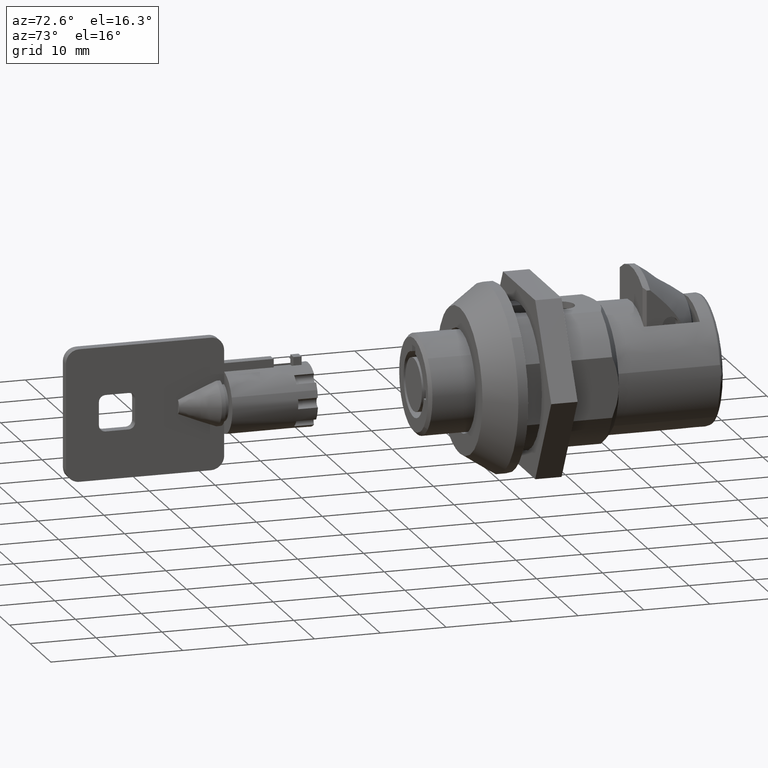
[diagram: clean part render]
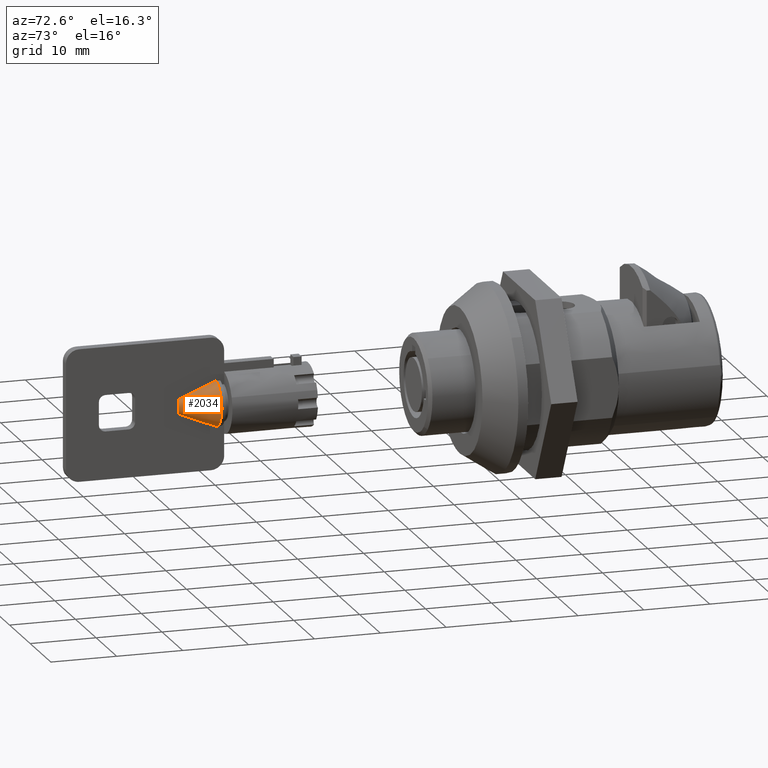
[diagram: same view with one face highlighted and labeled with its STEP entity id]
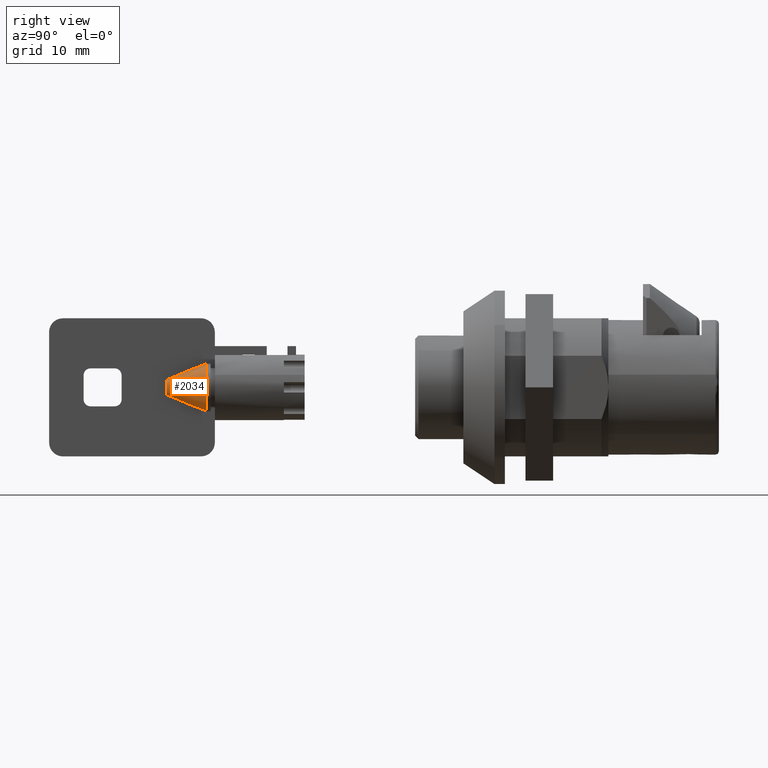
[diagram: same view with one face highlighted and labeled with its STEP entity id]
A machine part, auxiliary view. The second image highlights one B-rep face of the part: STEP entity #2034.
A second angle (right view) of the same face is appended — the face is thin or edge-on in the first view.
In plain terms, the highlighted face is a freeform B-spline surface patch.
Its self-contained STEP definition (entity closure, byte-faithful):
#1936=CARTESIAN_POINT('',(-233.199999999999990,-0.750000000000000,-3.440203482352215));
#1937=VERTEX_POINT('',#1936);
#1944=CARTESIAN_POINT('',(-233.199999999999990,-0.750000000000000,3.440203482352215));
#1945=VERTEX_POINT('',#1944);
#1951=CARTESIAN_POINT('',(-233.199999999999990,-0.750000000000000,-3.440203482352215));
#1952=CARTESIAN_POINT('',(-233.200000000000100,-1.163180162146860,-3.350425934760188));
#1953=CARTESIAN_POINT('',(-233.200000000000500,-1.909546631912601,-3.038941519378613));
#1954=CARTESIAN_POINT('',(-233.199999999999590,-2.807488323700768,-2.229406791165941));
#1955=CARTESIAN_POINT('',(-233.199999999999990,-3.323353652843767,-1.303807834906587));
#1956=CARTESIAN_POINT('',(-233.200000000001010,-3.527538246620559,-0.400135125733717));
#1957=CARTESIAN_POINT('',(-233.200000000002090,-3.527712057523801,0.500233370875995));
#1958=CARTESIAN_POINT('',(-233.199999999994790,-3.296957859802227,1.350861030951190));
#1959=CARTESIAN_POINT('',(-233.200000000006410,-2.766204295015768,2.257535731271755));
#1960=CARTESIAN_POINT('',(-233.199999999993390,-1.956304253606221,3.019555546393343));
#1961=CARTESIAN_POINT('',(-233.200000000003000,-1.163147926988599,3.350454326425378));
#1962=CARTESIAN_POINT('',(-233.199999999999990,-0.750000000000000,3.440203482352215));
#1963=B_SPLINE_CURVE_WITH_KNOTS('',3,(#1951,#1952,#1953,#1954,#1955,#1956,#1957,#1958,#1959,#1960,#1961,#1962),.UNSPECIFIED.,.F.,.U.,(4,1,1,1,1,1,1,1,1,4),(0.000001515621495,1.268367234980365,2.387546313341864,3.581347824261131,4.402128636820825,5.148060355025963,6.267268429337238,7.013399448503520,8.281877963114596,9.550171629593166),.UNSPECIFIED.);
#1964=EDGE_CURVE('',#1937,#1945,#1963,.T.);
#1969=CARTESIAN_POINT('',(-239.145000000000010,-0.254259626407410,-1.217216726640222));
#1970=CARTESIAN_POINT('',(-233.051375000000010,-0.731592653439764,-3.502352408191975));
#1971=CARTESIAN_POINT('',(-239.145000000000010,-1.266608091862046,-1.005751227533019));
#1972=CARTESIAN_POINT('',(-233.051374999999950,-3.644468403760014,-2.893893221066016));
#1973=CARTESIAN_POINT('',(-239.145000000000010,-1.243169456667722,0.028181895643350));
#1974=CARTESIAN_POINT('',(-233.051375000000010,-3.577027365018984,0.081089035266829));
#1975=CARTESIAN_POINT('',(-239.145000000000010,-1.219730821473399,1.062115018819720));
#1976=CARTESIAN_POINT('',(-233.051374999999950,-3.509586326277956,3.056071291599675));
#1977=CARTESIAN_POINT('',(-239.145000000000010,-0.198839652015851,1.227488211764084));
#1978=CARTESIAN_POINT('',(-233.051375000000010,-0.572130269688291,3.531907014098979));
#1986=(BOUNDED_SURFACE()B_SPLINE_SURFACE(1,2,((#1969,#1971,#1973,#1975,#1977),(#1970,#1972,#1974,#1976,#1978)),.UNSPECIFIED.,.F.,.F.,.U.)B_SPLINE_SURFACE_WITH_KNOTS((2,2),(3,2,3),(0.0,6.525485234250585),(0.0,5.173732127466558,10.347464254933120),.UNSPECIFIED.)GEOMETRIC_REPRESENTATION_ITEM()RATIONAL_B_SPLINE_SURFACE(((1.0,0.768841832073460,1.0,0.768841832073460,1.0),(1.0,0.768841832073460,1.0,0.768841832073460,1.0)))REPRESENTATION_ITEM('')SURFACE());
#1987=CARTESIAN_POINT('',(-239.0,-0.750000000000000,-1.060660171775574));
#1988=VERTEX_POINT('',#1987);
#1989=CARTESIAN_POINT('',(-233.199999999999990,-0.750000000000000,-3.440203482352215));
#1990=CARTESIAN_POINT('',(-233.831297445666710,-0.750000000000000,-3.192672116676382));
#1991=CARTESIAN_POINT('',(-234.462215594331210,-0.750000000000000,-2.944169559553595));
#1992=CARTESIAN_POINT('',(-235.722431058296990,-0.750000000000000,-2.443014295184313));
#1993=CARTESIAN_POINT('',(-236.351808152626690,-0.750000000000000,-2.190592215184496));
#1994=CARTESIAN_POINT('',(-237.292531770479000,-0.750000000000000,-1.804020677361460));
#1995=CARTESIAN_POINT('',(-237.605542711084810,-0.750000000000000,-1.673814610878441));
#1996=CARTESIAN_POINT('',(-238.229324450946390,-0.750000000000000,-1.408041042322752));
#1997=CARTESIAN_POINT('',(-238.540191876838290,-0.750000000000000,-1.272704801320065));
#1998=CARTESIAN_POINT('',(-238.899030339134610,-0.750000000000000,-1.107755796623606));
#1999=CARTESIAN_POINT('',(-238.949568609213600,-0.750000000000000,-1.084316623477761));
#2000=CARTESIAN_POINT('',(-239.0,-0.750000000000000,-1.060660171775574));
#2001=B_SPLINE_CURVE_WITH_KNOTS('',3,(#1989,#1990,#1991,#1992,#1993,#1994,#1995,#1996,#1997,#1998,#1999,#2000),.UNSPECIFIED.,.F.,.U.,(4,2,2,2,2,4),(0.0,0.125000000000023,0.250000000000045,0.312500000000057,0.375000000000068,0.385264977141127),.UNSPECIFIED.);
#2002=EDGE_CURVE('',#1937,#1988,#2001,.T.);
#2003=ORIENTED_EDGE('',*,*,#2002,.F.);
#2004=ORIENTED_EDGE('',*,*,#1964,.T.);
#2005=CARTESIAN_POINT('',(-239.0,-0.750000000000000,1.060660171775574));
#2006=VERTEX_POINT('',#2005);
#2007=CARTESIAN_POINT('',(-239.0,-0.750000000000000,1.060660171775574));
#2008=CARTESIAN_POINT('',(-238.936167796036300,-0.750000000000000,1.090606473848746));
#2009=CARTESIAN_POINT('',(-238.872155778518900,-0.750000000000000,1.120206575066255));
#2010=CARTESIAN_POINT('',(-238.501917908066300,-0.750000000000000,1.289562803727005));
#2011=CARTESIAN_POINT('',(-238.192963531593590,-0.750000000000000,1.423754877889063));
#2012=CARTESIAN_POINT('',(-237.573466015208510,-0.750000000000000,1.687231626343362));
#2013=CARTESIAN_POINT('',(-237.262670403461190,-0.750000000000000,1.816383808526862));
#2014=CARTESIAN_POINT('',(-236.328686096132490,-0.750000000000000,2.199893891331620));
#2015=CARTESIAN_POINT('',(-235.703939635300800,-0.750000000000000,2.450403421683778));
#2016=CARTESIAN_POINT('',(-234.452982118316900,-0.750000000000000,2.947804283120521));
#2017=CARTESIAN_POINT('',(-233.826684131985590,-0.750000000000000,3.194480858152192));
#2018=CARTESIAN_POINT('',(-233.199999999999990,-0.750000000000000,3.440203482352215));
#2019=B_SPLINE_CURVE_WITH_KNOTS('',3,(#2007,#2008,#2009,#2010,#2011,#2012,#2013,#2014,#2015,#2016,#2017,#2018),.UNSPECIFIED.,.F.,.U.,(4,2,2,2,2,4),(0.611902203524427,0.625000000000063,0.687500000000052,0.750000000000042,0.875000000000021,1.0),.UNSPECIFIED.);
#2020=EDGE_CURVE('',#2006,#1945,#2019,.T.);
#2021=ORIENTED_EDGE('',*,*,#2020,.F.);
#2022=CARTESIAN_POINT('',(-239.0,-0.750000000000000,-1.060660171775574));
#2023=CARTESIAN_POINT('',(-239.0,-0.940502152547354,-0.926776858667926));
#2024=CARTESIAN_POINT('',(-239.000000000000110,-1.194260032114522,-0.615277884556368));
#2025=CARTESIAN_POINT('',(-239.000000000000200,-1.337468548947607,-0.028116992779734));
#2026=CARTESIAN_POINT('',(-239.0,-1.228419950878870,0.573865833625655));
#2027=CARTESIAN_POINT('',(-238.999999999999800,-0.940421180867752,0.926723813483227));
#2028=CARTESIAN_POINT('',(-239.0,-0.750000000000000,1.060660171775574));
#2029=B_SPLINE_CURVE_WITH_KNOTS('',3,(#2022,#2023,#2024,#2025,#2026,#2027,#2028),.UNSPECIFIED.,.F.,.U.,(4,1,1,1,4),(0.000000889660710,0.698163897062541,1.163618191865748,1.784190529326700,2.482353536728530),.UNSPECIFIED.);
#2030=EDGE_CURVE('',#1988,#2006,#2029,.T.);
#2031=ORIENTED_EDGE('',*,*,#2030,.F.);
#2032=EDGE_LOOP('',(#2003,#2004,#2021,#2031));
#2033=FACE_OUTER_BOUND('',#2032,.T.);
#2034=ADVANCED_FACE('',(#2033),#1986,.T.);